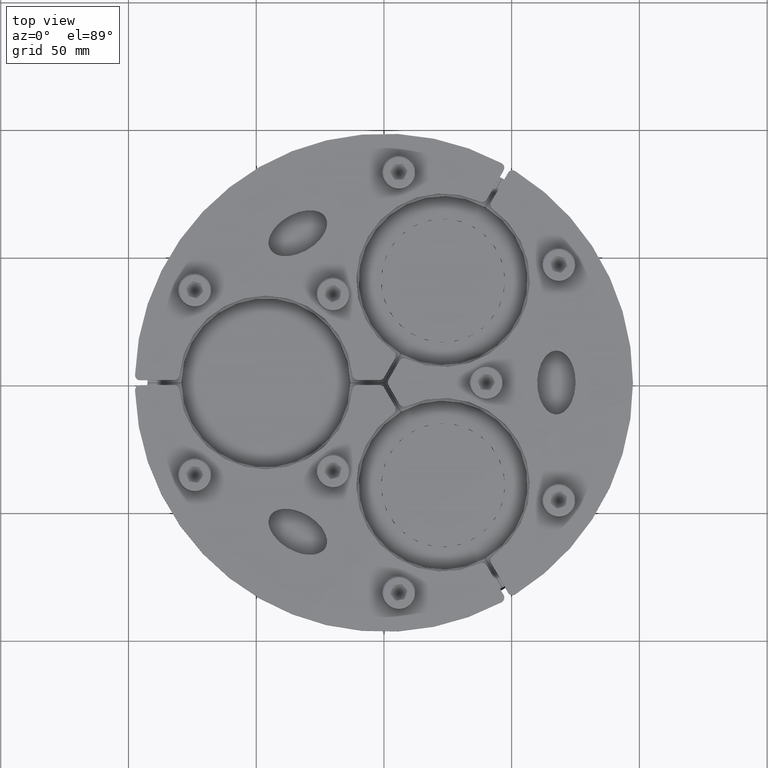
[diagram: clean part render]
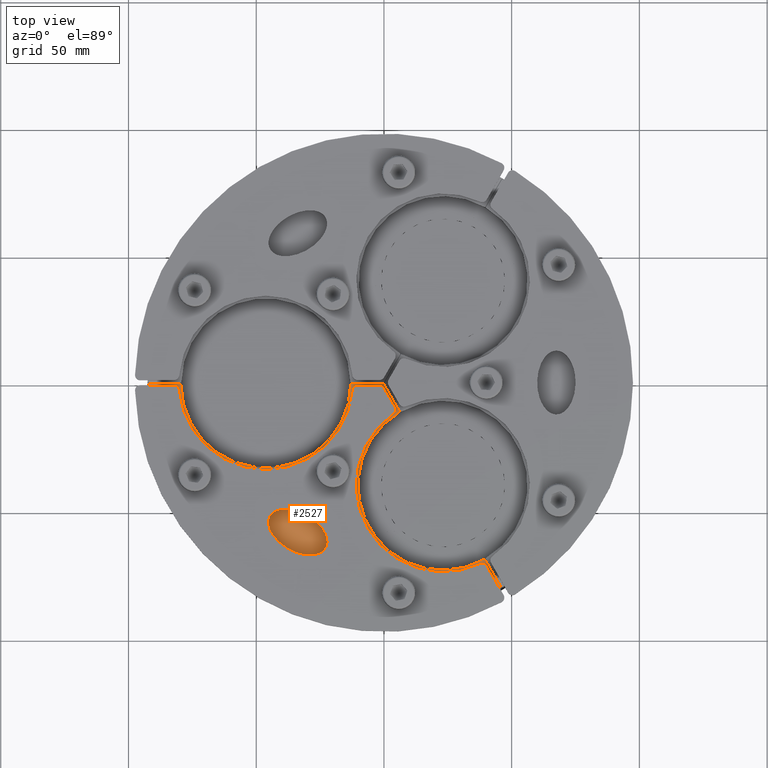
[diagram: same view with one face highlighted and labeled with its STEP entity id]
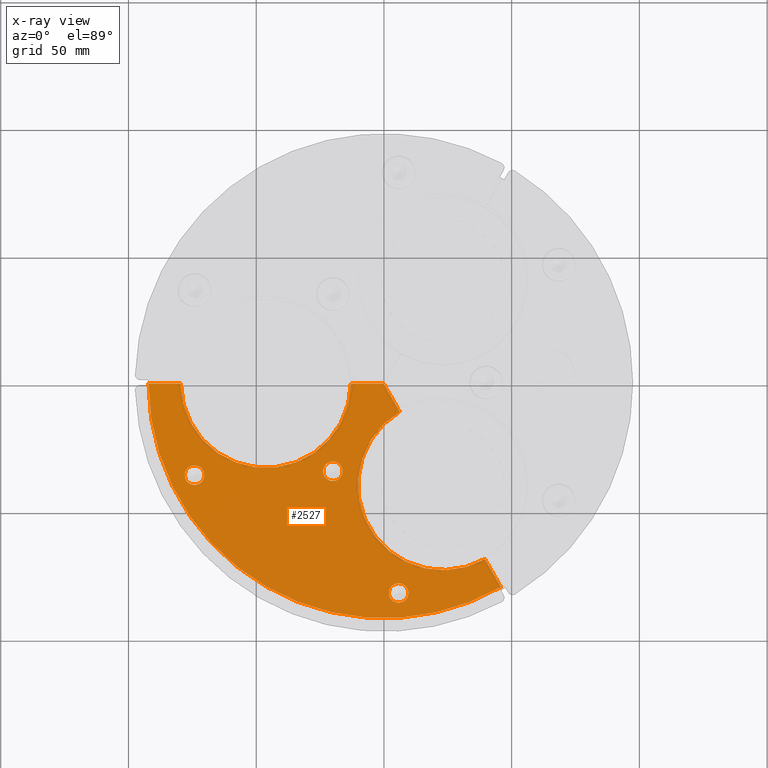
[diagram: x-ray of the same camera — body ghosted, the highlighted face saturated]
A machine part, top view. The second image highlights one B-rep face of the part: STEP entity #2527.
The next image is the same camera in x-ray: the body ghosted, the highlighted face saturated — about 0% of this face is hidden behind the body in this view.
In plain terms, the highlighted planar face has unit normal (0, -0, 1).
Its self-contained STEP definition (entity closure, byte-faithful):
#2424=CARTESIAN_POINT('',(9.554909083890347,82.299034146435517,60.0));
#2425=VERTEX_POINT('',#2424);
#2426=CARTESIAN_POINT('',(5.754909083890345,82.299034146435517,60.0));
#2427=DIRECTION('',(0.0,0.0,1.0));
#2428=DIRECTION('',(-1.0,0.0,0.0));
#2429=AXIS2_PLACEMENT_3D('',#2426,#2427,#2428);
#2430=CIRCLE('',#2429,3.800000000000003);
#2431=EDGE_CURVE('',#2425,#2425,#2430,.T.);
#2436=CARTESIAN_POINT('',(-24.444747323088414,42.339544341772388,60.0));
#2437=DIRECTION('',(0.0,0.0,1.0));
#2438=DIRECTION('',(1.0,0.0,0.0));
#2439=AXIS2_PLACEMENT_3D('',#2436,#2437,#2438);
#2440=PLANE('',#2439);
#2441=CARTESIAN_POINT('',(-79.548648621227869,0.300000000000002,60.0));
#2442=VERTEX_POINT('',#2441);
#2443=CARTESIAN_POINT('',(-92.199511929293863,0.299999999999998,60.0));
#2444=VERTEX_POINT('',#2443);
#2445=CARTESIAN_POINT('',(-79.548648621227869,0.300000000000002,60.0));
#2446=DIRECTION('',(-1.0,0.0,0.0));
#2447=VECTOR('',#2446,12.650863308066008);
#2448=LINE('',#2445,#2447);
#2449=EDGE_CURVE('',#2442,#2444,#2448,.T.);
#2450=ORIENTED_EDGE('',*,*,#2449,.F.);
#2451=CARTESIAN_POINT('',(-12.951351378772141,0.300000000000004,60.0));
#2452=VERTEX_POINT('',#2451);
#2453=CARTESIAN_POINT('',(-46.25,0.0,60.0));
#2454=DIRECTION('',(0.0,0.0,1.0));
#2455=DIRECTION('',(0.0,1.0,0.0));
#2456=AXIS2_PLACEMENT_3D('',#2453,#2454,#2455);
#2457=CIRCLE('',#2456,33.299999999999997);
#2458=EDGE_CURVE('',#2452,#2442,#2457,.T.);
#2459=ORIENTED_EDGE('',*,*,#2458,.F.);
#2460=CARTESIAN_POINT('',(-0.173205080756889,0.300000000000002,60.0));
#2461=VERTEX_POINT('',#2460);
#2462=CARTESIAN_POINT('',(-0.173205080756887,0.300000000000002,60.0));
#2463=DIRECTION('',(-1.0,0.0,0.0));
#2464=VECTOR('',#2463,12.778146298015255);
#2465=LINE('',#2462,#2464);
#2466=EDGE_CURVE('',#2461,#2452,#2465,.T.);
#2467=ORIENTED_EDGE('',*,*,#2466,.F.);
#2468=CARTESIAN_POINT('',(6.215868068250727,11.366199307355282,60.0));
#2469=VERTEX_POINT('',#2468);
#2470=CARTESIAN_POINT('',(6.215868068250725,11.366199307355274,60.0));
#2471=DIRECTION('',(-0.5,-0.866025403784439,0.0));
#2472=VECTOR('',#2471,12.778146298015251);
#2473=LINE('',#2470,#2472);
#2474=EDGE_CURVE('',#2469,#2461,#2473,.T.);
#2475=ORIENTED_EDGE('',*,*,#2474,.F.);
#2476=CARTESIAN_POINT('',(39.514516689478569,69.04115054270531,60.0));
#2477=VERTEX_POINT('',#2476);
#2478=CARTESIAN_POINT('',(23.124999999999986,40.0536749250303,60.0));
#2479=DIRECTION('',(0.0,0.0,1.0));
#2480=DIRECTION('',(-0.866025403784439,0.499999999999999,0.0));
#2481=AXIS2_PLACEMENT_3D('',#2478,#2479,#2480);
#2482=CIRCLE('',#2481,33.299999999999997);
#2483=EDGE_CURVE('',#2477,#2469,#2482,.T.);
#2484=ORIENTED_EDGE('',*,*,#2483,.F.);
#2485=CARTESIAN_POINT('',(45.83994834351158,79.997119547294915,60.0));
#2486=VERTEX_POINT('',#2485);
#2487=CARTESIAN_POINT('',(45.83994834351158,79.997119547294915,60.0));
#2488=DIRECTION('',(-0.5,-0.866025403784438,0.0));
#2489=VECTOR('',#2488,12.650863308066013);
#2490=LINE('',#2487,#2489);
#2491=EDGE_CURVE('',#2486,#2477,#2490,.T.);
#2492=ORIENTED_EDGE('',*,*,#2491,.F.);
#2493=CARTESIAN_POINT('',(0.0,0.0,60.0));
#2494=DIRECTION('',(0.0,0.0,-1.0));
#2495=DIRECTION('',(-0.5,0.866025403784439,0.0));
#2496=AXIS2_PLACEMENT_3D('',#2493,#2494,#2495);
#2497=CIRCLE('',#2496,92.200000000000003);
#2498=EDGE_CURVE('',#2444,#2486,#2497,.T.);
#2499=ORIENTED_EDGE('',*,*,#2498,.F.);
#2500=EDGE_LOOP('',(#2450,#2459,#2467,#2475,#2484,#2492,#2499));
#2501=FACE_OUTER_BOUND('',#2500,.T.);
#2502=CARTESIAN_POINT('',(-16.200000000000006,34.641016151377542,60.0));
#2503=VERTEX_POINT('',#2502);
#2504=CARTESIAN_POINT('',(-20.000000000000004,34.641016151377542,60.0));
#2505=DIRECTION('',(0.0,0.0,1.0));
#2506=DIRECTION('',(-1.0,0.0,0.0));
#2507=AXIS2_PLACEMENT_3D('',#2504,#2505,#2506);
#2508=CIRCLE('',#2507,3.8);
#2509=EDGE_CURVE('',#2503,#2503,#2508,.T.);
#2510=ORIENTED_EDGE('',*,*,#2509,.F.);
#2511=EDGE_LOOP('',(#2510));
#2512=FACE_BOUND('',#2511,.T.);
#2513=CARTESIAN_POINT('',(-70.350508819681266,36.165619610098886,60.0));
#2514=VERTEX_POINT('',#2513);
#2515=CARTESIAN_POINT('',(-74.150508819681264,36.165619610098886,60.0));
#2516=DIRECTION('',(0.0,0.0,1.0));
#2517=DIRECTION('',(-1.0,0.0,0.0));
#2518=AXIS2_PLACEMENT_3D('',#2515,#2516,#2517);
#2519=CIRCLE('',#2518,3.800000000000003);
#2520=EDGE_CURVE('',#2514,#2514,#2519,.T.);
#2521=ORIENTED_EDGE('',*,*,#2520,.F.);
#2522=EDGE_LOOP('',(#2521));
#2523=FACE_BOUND('',#2522,.T.);
#2524=ORIENTED_EDGE('',*,*,#2431,.F.);
#2525=EDGE_LOOP('',(#2524));
#2526=FACE_BOUND('',#2525,.T.);
#2527=ADVANCED_FACE('',(#2501,#2512,#2523,#2526),#2440,.T.);